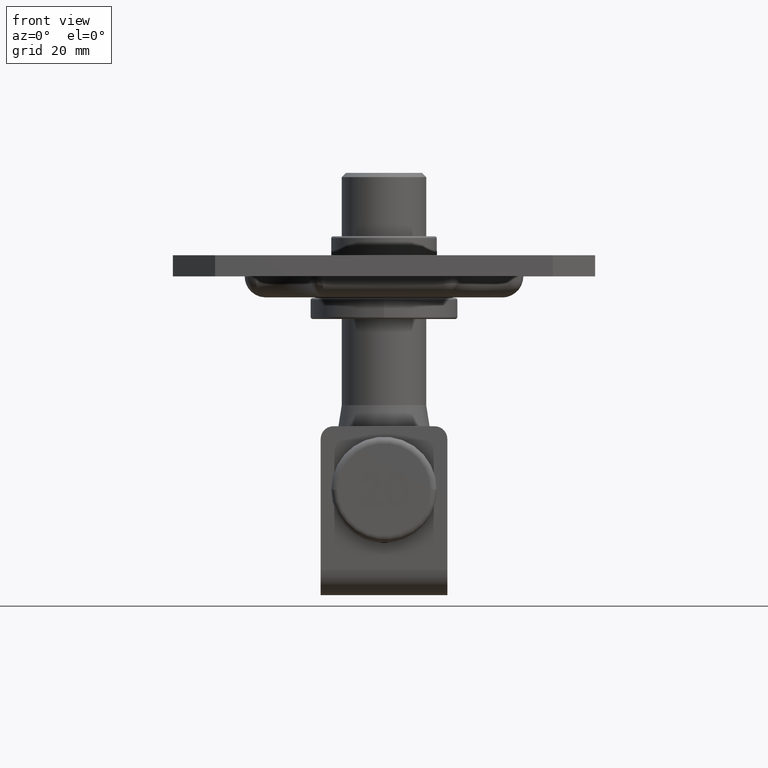
[diagram: clean part render]
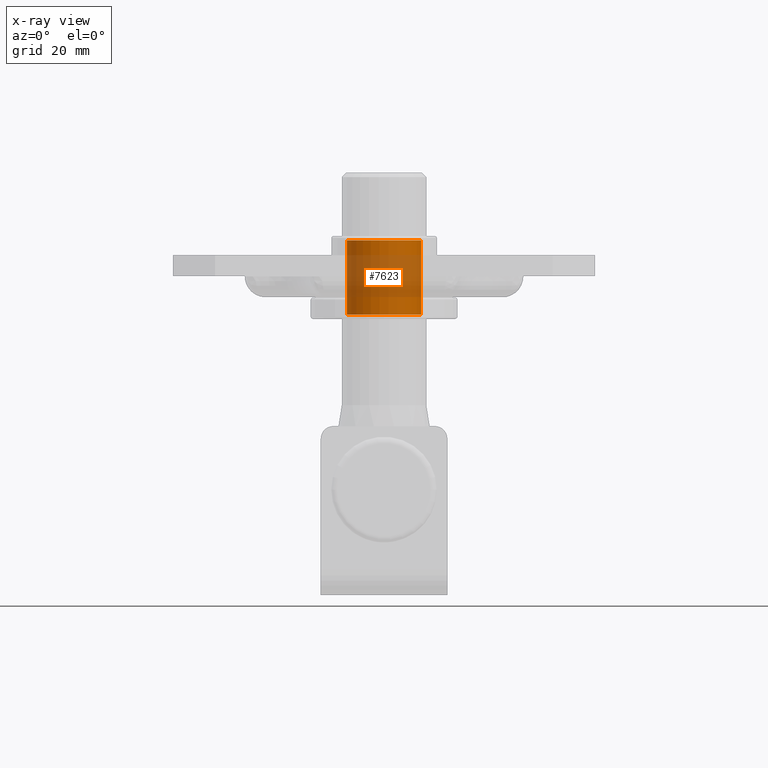
[diagram: x-ray — body ghosted, one internal face saturated and labeled with its STEP entity id]
A machine part, front view, then the same camera in x-ray: the body is ghosted and one INTERNAL B-rep face — a face not visible from any outside direction — is saturated and labeled: STEP entity #7623.
In plain terms, the highlighted cylindrical surface (partial cylindrical patch) has radius 8.75 mm, axis along (0, 0, -1).
Its self-contained STEP definition (entity closure, byte-faithful):
#412 = DIRECTION ( 'NONE',  ( 0.0000000000000000000, 0.0000000000000000000, -1.000000000000000000 ) ) ;
#589 = DIRECTION ( 'NONE',  ( -1.000000000000000000, 0.0000000000000000000, 0.0000000000000000000 ) ) ;
#935 = DIRECTION ( 'NONE',  ( 1.000000000000000000, 0.0000000000000000000, 0.0000000000000000000 ) ) ;
#1004 = DIRECTION ( 'NONE',  ( 0.0000000000000000000, 0.0000000000000000000, 1.000000000000000000 ) ) ;
#1107 = VERTEX_POINT ( 'NONE', #2374 ) ;
#2045 = EDGE_CURVE ( 'NONE', #5750, #16730, #8833, .T. ) ;
#2374 = CARTESIAN_POINT ( 'NONE',  ( -8.749999999999991100, 1.071565949253932900E-015, -5.999999999999963600 ) ) ;
#3027 = EDGE_CURVE ( 'NONE', #1107, #17783, #12185, .T. ) ;
#4167 = CARTESIAN_POINT ( 'NONE',  ( 0.0000000000000000000, 0.0000000000000000000, 12.60000000000000000 ) ) ;
#4543 = CYLINDRICAL_SURFACE ( 'NONE', #15545, 8.750000000000012400 ) ;
#5407 = AXIS2_PLACEMENT_3D ( 'NONE', #11571, #22483, #22343 ) ;
#5750 = VERTEX_POINT ( 'NONE', #6601 ) ;
#5983 = EDGE_CURVE ( 'NONE', #17783, #16730, #20823, .T. ) ;
#6015 = ORIENTED_EDGE ( 'NONE', *, *, #13046, .T. ) ;
#6225 = ORIENTED_EDGE ( 'NONE', *, *, #2045, .F. ) ;
#6601 = CARTESIAN_POINT ( 'NONE',  ( 8.749999999999991100, 0.0000000000000000000, -5.999999999999963600 ) ) ;
#7623 = ADVANCED_FACE ( 'NONE', ( #9348 ), #4543, .F. ) ;
#8595 = CIRCLE ( 'NONE', #20024, 8.750000000000012400 ) ;
#8833 = LINE ( 'NONE', #18831, #18141 ) ;
#9144 = ORIENTED_EDGE ( 'NONE', *, *, #3027, .T. ) ;
#9348 = FACE_OUTER_BOUND ( 'NONE', #22316, .T. ) ;
#9718 = DIRECTION ( 'NONE',  ( 0.0000000000000000000, 0.0000000000000000000, 1.000000000000000000 ) ) ;
#11571 = CARTESIAN_POINT ( 'NONE',  ( 0.0000000000000000000, 0.0000000000000000000, 11.59999999999999300 ) ) ;
#12185 = LINE ( 'NONE', #19083, #18119 ) ;
#12812 = ORIENTED_EDGE ( 'NONE', *, *, #5983, .T. ) ;
#13046 = EDGE_CURVE ( 'NONE', #5750, #1107, #8595, .T. ) ;
#15545 = AXIS2_PLACEMENT_3D ( 'NONE', #4167, #22296, #935 ) ;
#15902 = CARTESIAN_POINT ( 'NONE',  ( 8.750000000000012400, 0.0000000000000000000, 11.59999999999999300 ) ) ;
#16251 = CARTESIAN_POINT ( 'NONE',  ( 0.0000000000000000000, 0.0000000000000000000, -5.999999999999963600 ) ) ;
#16730 = VERTEX_POINT ( 'NONE', #15902 ) ;
#17591 = CARTESIAN_POINT ( 'NONE',  ( -8.749999999999991100, 1.071565949253932900E-015, 11.59999999999999300 ) ) ;
#17783 = VERTEX_POINT ( 'NONE', #17591 ) ;
#18119 = VECTOR ( 'NONE', #1004, 1000.000000000000000 ) ;
#18141 = VECTOR ( 'NONE', #9718, 1000.000000000000000 ) ;
#18831 = CARTESIAN_POINT ( 'NONE',  ( 8.750000000000012400, 0.0000000000000000000, 12.60000000000000000 ) ) ;
#19083 = CARTESIAN_POINT ( 'NONE',  ( -8.750000000000012400, 1.071565949253935700E-015, 12.60000000000000000 ) ) ;
#20024 = AXIS2_PLACEMENT_3D ( 'NONE', #16251, #412, #589 ) ;
#20823 = CIRCLE ( 'NONE', #5407, 8.750000000000012400 ) ;
#22296 = DIRECTION ( 'NONE',  ( 0.0000000000000000000, 0.0000000000000000000, 1.000000000000000000 ) ) ;
#22316 = EDGE_LOOP ( 'NONE', ( #6015, #9144, #12812, #6225 ) ) ;
#22343 = DIRECTION ( 'NONE',  ( 1.000000000000000000, 0.0000000000000000000, 0.0000000000000000000 ) ) ;
#22483 = DIRECTION ( 'NONE',  ( 0.0000000000000000000, 0.0000000000000000000, 1.000000000000000000 ) ) ;